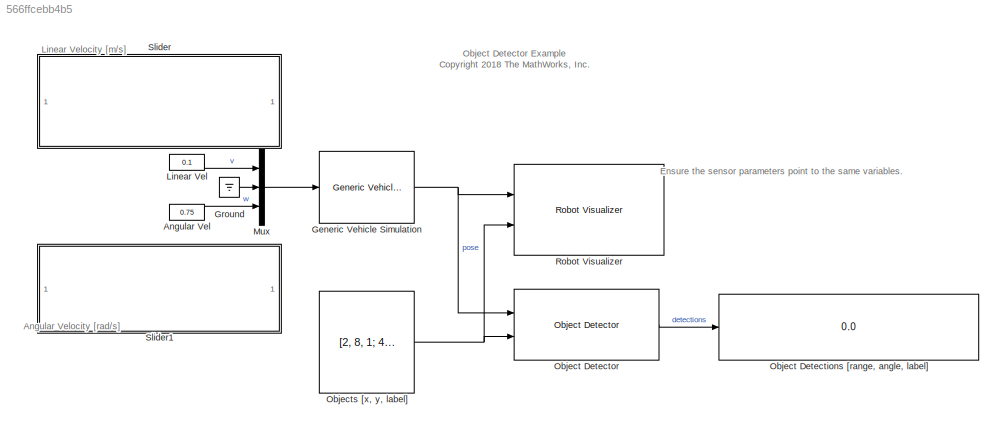
MODEL slx_566ffcebb4b5
KIND model
CONFIG AbsTol = auto
CONFIG EnableMultiTasking = on
CONFIG FixedStep = 0.01
CONFIG MaxStep = auto
CONFIG MinStep = auto
CONFIG PreLoadFcn = % Simulation parameters\nload exampleMap\nsampleTime = 0.05;\n\n% Object Detector parameters\nobjX = 4;\nobjY = 4;\ntargetLabel = 1;\nobjLabel = 1;\nobjDetectorOffset = [0 0];\nobjDetectorAngle = 0;\nobjDetectorFOV = pi/3;\nobjDetectorRange = 5;\nobjDetectorColors = [1 0 0;0 1 0;0 0 1];\nobjDetectorMaxHits = 3;
CONFIG RelTol = 1e-3
CONFIG SampleTimeConstraint = Unconstrained
CONFIG Solver = VariableStepAuto
CONFIG SolverName = VariableStepAuto
CONFIG StartTime = 0.0
CONFIG StopTime = inf
BLOCK [Constant] Angular Vel
  Value = 0.75
BLOCK [Reference] Generic Vehicle Simulation  REF=mobileRoboticsLib/Utilities/Generic Vehicle Simulation
  Ports = [1, 1]
  SourceBlock = mobileRoboticsLib/Utilities/Generic Vehicle Simulation
  SourceProductName = Mobile Robotics Simulation Library
  SourceType = Generic Vehicle Simulation
BLOCK [Ground] Ground
BLOCK [Constant] Linear Vel
  Value = 0.1
BLOCK [Mux] Mux
  DisplayOption = bar
  Inputs = 3
  Ports = [3, 1]
BLOCK [Display] Object Detections [range, angle, label]
  Decimation = 1
  Ports = [1]
BLOCK [Reference] Object Detector  REF=mobileRoboticsLib/Environments/Object Detector
  Ports = [2, 1]
  SourceBlock = mobileRoboticsLib/Environments/Object Detector
  SourceProductName = Ground Vehicles Library
  SourceType = ObjectDetector
BLOCK [Constant] Objects [x, y, label]
  Value = [2, 8, 1; 4, 9, 1; 3, 7, 3;6.5, 5, 2; 9, 11, 2; 8, 4, 3]
BLOCK [Reference] Robot Visualizer  REF=mobileRoboticsLib/Environments/Robot Visualizer
  Ports = [2]
  Priority = 99
  SourceBlock = mobileRoboticsLib/Environments/Robot Visualizer
  SourceProductName = Ground Vehicles Library
  SourceType = Visualizer2D
BLOCK [SubSystem] Slider
  DialogController = hmiCreateDDGDialog
  IsWebBlock = on
  Ports = []
  RequestExecContextInheritance = off
BLOCK [SubSystem] Slider1
  DialogController = hmiCreateDDGDialog
  IsWebBlock = on
  Ports = []
  RequestExecContextInheritance = off
ANNOTATION (root): Ensure the sensor parameters point to the same variables.
ANNOTATION (root): Angular Velocity [rad/s]
ANNOTATION (root): Linear Velocity [m/s]
ANNOTATION (root): Object Detector Example <copyright redacted>
LINE Angular Vel:1 -> Mux:3
NET Generic Vehicle Simulation:1 -> Object Detector:1, Robot Visualizer:1
LINE Ground:1 -> Mux:2
LINE Linear Vel:1 -> Mux:1
LINE Mux:1 -> Generic Vehicle Simulation:1
LINE Object Detector:1 -> Object Detections [range, angle, label]:1
NET Objects [x, y, label]:1 -> Object Detector:2, Robot Visualizer:2
note: NET lines group one-source signal fan-out (src -> all destinations, sorted); 1:1 wires keep LINE
